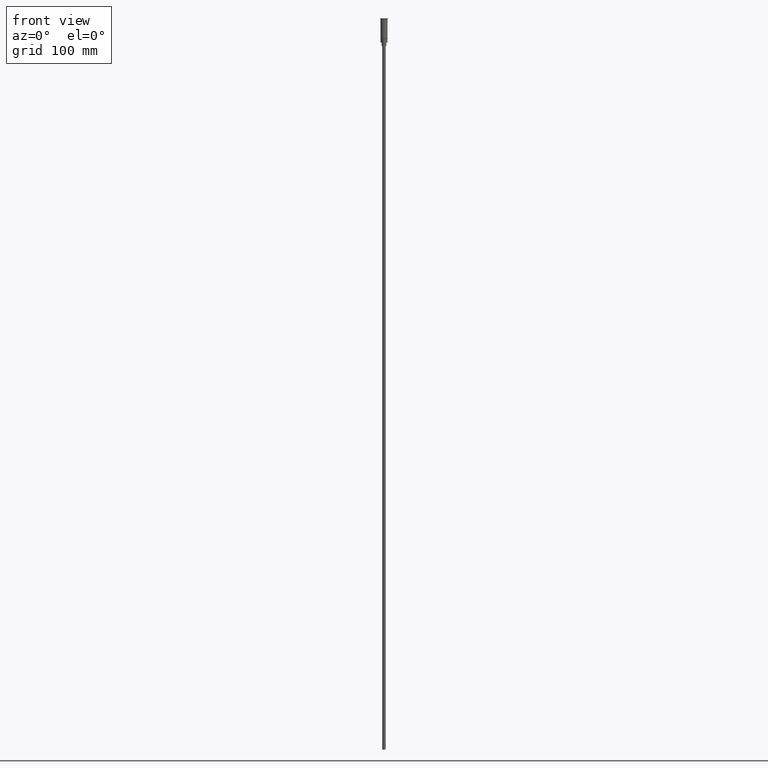
[diagram: clean part render]
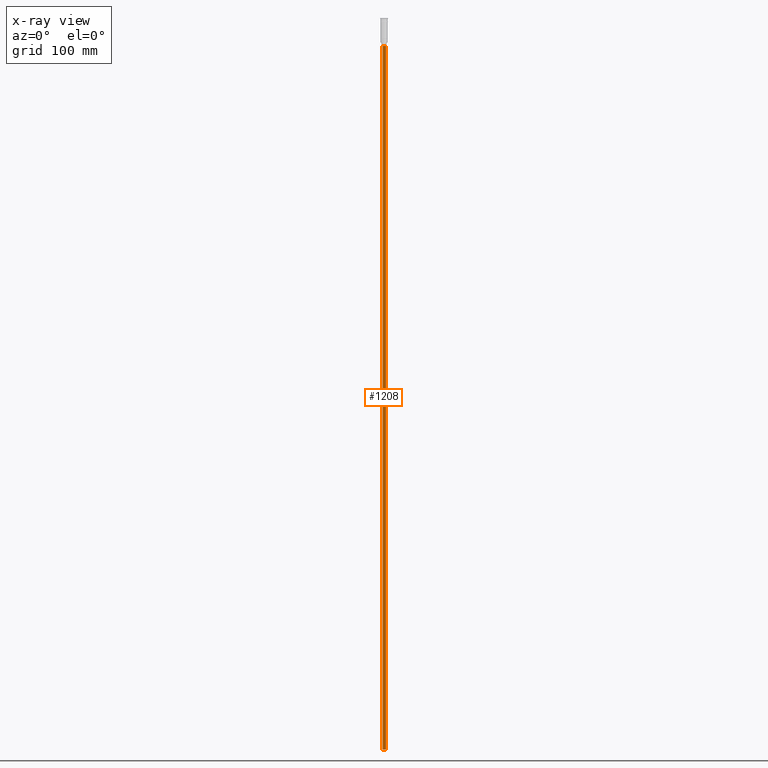
[diagram: x-ray — body ghosted, one internal face saturated and labeled with its STEP entity id]
A machine part, front view, then the same camera in x-ray: the body is ghosted and one INTERNAL B-rep face — a face not visible from any outside direction — is saturated and labeled: STEP entity #1208.
In plain terms, the highlighted cylindrical surface (edge-blend (fillet) strip) has radius 1.5 mm, axis along (-0, -0, 1).
Its self-contained STEP definition (entity closure, byte-faithful):
#19 = CARTESIAN_POINT ( 'NONE',  ( -1.500000000000000222, 1.836970198721030181E-16, -620.4999999999998863 ) ) ;
#59 = AXIS2_PLACEMENT_3D ( 'NONE', #1043, #1548, #425 ) ;
#98 = CYLINDRICAL_SURFACE ( 'NONE', #838, 1.500000000000000222 ) ;
#196 = LINE ( 'NONE', #839, #914 ) ;
#255 = EDGE_LOOP ( 'NONE', ( #345, #1416, #1429, #273 ) ) ;
#273 = ORIENTED_EDGE ( 'NONE', *, *, #929, .F. ) ;
#283 = CARTESIAN_POINT ( 'NONE',  ( 1.500000000000000222, 0.000000000000000000, -23.50000000000000000 ) ) ;
#297 = VERTEX_POINT ( 'NONE', #283 ) ;
#344 = DIRECTION ( 'NONE',  ( 1.000000000000000000, 0.000000000000000000, 0.000000000000000000 ) ) ;
#345 = ORIENTED_EDGE ( 'NONE', *, *, #1546, .F. ) ;
#373 = LINE ( 'NONE', #19, #711 ) ;
#400 = EDGE_CURVE ( 'NONE', #646, #297, #1066, .T. ) ;
#425 = DIRECTION ( 'NONE',  ( -1.000000000000000000, 0.000000000000000000, 0.000000000000000000 ) ) ;
#464 = VERTEX_POINT ( 'NONE', #1439 ) ;
#551 = EDGE_CURVE ( 'NONE', #1219, #646, #373, .T. ) ;
#583 = DIRECTION ( 'NONE',  ( -0.000000000000000000, -0.000000000000000000, 1.000000000000000000 ) ) ;
#596 = DIRECTION ( 'NONE',  ( -1.000000000000000000, 0.000000000000000000, 0.000000000000000000 ) ) ;
#646 = VERTEX_POINT ( 'NONE', #1577 ) ;
#711 = VECTOR ( 'NONE', #1487, 1000.000000000000000 ) ;
#724 = CARTESIAN_POINT ( 'NONE',  ( -1.500000000000000222, 1.836970198721030181E-16, -620.4999999999998863 ) ) ;
#788 = AXIS2_PLACEMENT_3D ( 'NONE', #1246, #1589, #596 ) ;
#838 = AXIS2_PLACEMENT_3D ( 'NONE', #947, #1465, #344 ) ;
#839 = CARTESIAN_POINT ( 'NONE',  ( 1.500000000000000222, 0.000000000000000000, -620.4999999999998863 ) ) ;
#914 = VECTOR ( 'NONE', #583, 1000.000000000000000 ) ;
#929 = EDGE_CURVE ( 'NONE', #464, #297, #196, .T. ) ;
#947 = CARTESIAN_POINT ( 'NONE',  ( 0.000000000000000000, 0.000000000000000000, -620.4999999999998863 ) ) ;
#1041 = CIRCLE ( 'NONE', #788, 1.500000000000000222 ) ;
#1043 = CARTESIAN_POINT ( 'NONE',  ( 0.000000000000000000, 0.000000000000000000, -23.50000000000000000 ) ) ;
#1066 = CIRCLE ( 'NONE', #59, 1.500000000000000222 ) ;
#1075 = FACE_OUTER_BOUND ( 'NONE', #255, .T. ) ;
#1208 = ADVANCED_FACE ( 'NONE', ( #1075 ), #98, .T. ) ;
#1219 = VERTEX_POINT ( 'NONE', #724 ) ;
#1246 = CARTESIAN_POINT ( 'NONE',  ( 0.000000000000000000, 0.000000000000000000, -620.4999999999998863 ) ) ;
#1416 = ORIENTED_EDGE ( 'NONE', *, *, #551, .T. ) ;
#1429 = ORIENTED_EDGE ( 'NONE', *, *, #400, .T. ) ;
#1439 = CARTESIAN_POINT ( 'NONE',  ( 1.500000000000000222, 0.000000000000000000, -620.4999999999998863 ) ) ;
#1465 = DIRECTION ( 'NONE',  ( -0.000000000000000000, -0.000000000000000000, 1.000000000000000000 ) ) ;
#1487 = DIRECTION ( 'NONE',  ( -0.000000000000000000, -0.000000000000000000, 1.000000000000000000 ) ) ;
#1546 = EDGE_CURVE ( 'NONE', #1219, #464, #1041, .T. ) ;
#1548 = DIRECTION ( 'NONE',  ( 0.000000000000000000, 0.000000000000000000, -1.000000000000000000 ) ) ;
#1577 = CARTESIAN_POINT ( 'NONE',  ( -1.500000000000000222, 1.836970198721030181E-16, -23.50000000000000000 ) ) ;
#1589 = DIRECTION ( 'NONE',  ( 0.000000000000000000, 0.000000000000000000, -1.000000000000000000 ) ) ;